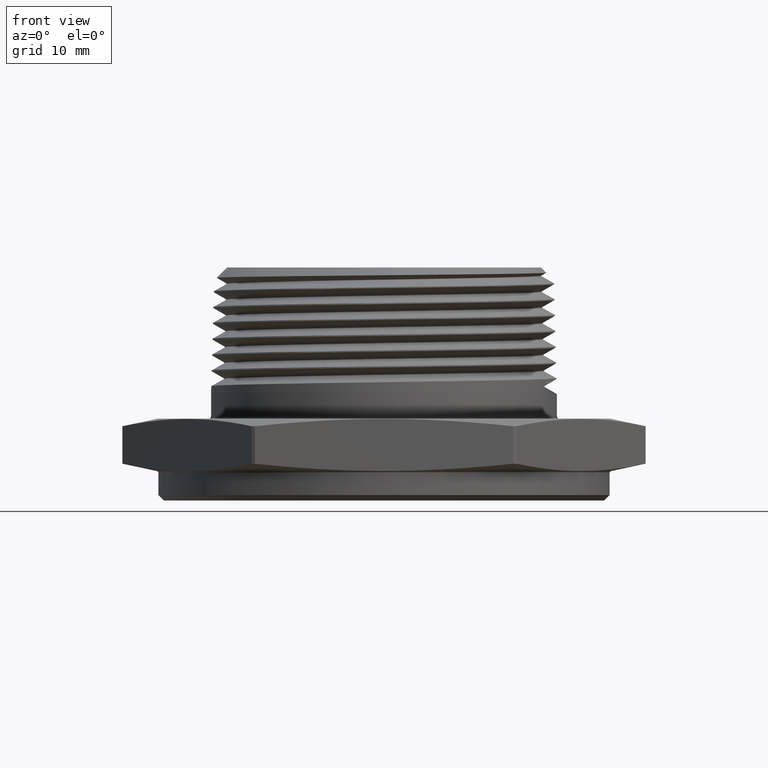
[diagram: clean part render]
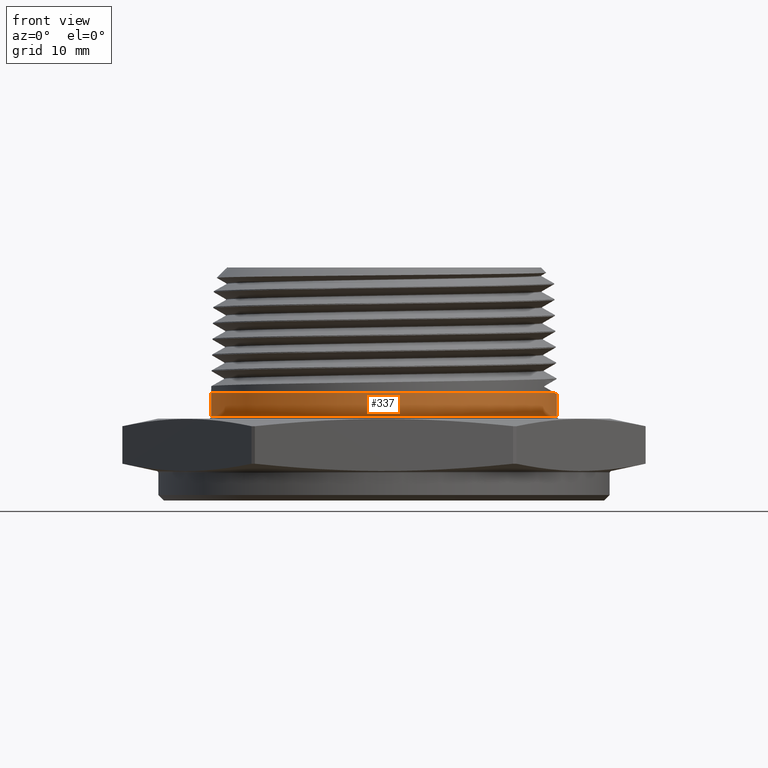
[diagram: same view with one face highlighted and labeled with its STEP entity id]
A machine part, front view. The second image highlights one B-rep face of the part: STEP entity #337.
In plain terms, the highlighted cylindrical surface (partial cylindrical patch) has radius 24.13 mm, axis along (-0, -0, -1).
Its self-contained STEP definition (entity closure, byte-faithful):
#106 = EDGE_CURVE ( 'NONE', #682, #694, #5133, .T. ) ;
#152 = EDGE_CURVE ( 'NONE', #627, #664, #383, .T. ) ;
#161 = EDGE_CURVE ( 'NONE', #627, #682, #391, .T. ) ;
#163 = EDGE_CURVE ( 'NONE', #613, #694, #386, .T. ) ;
#196 = EDGE_CURVE ( 'NONE', #613, #664, #7400, .T. ) ;
#244 = AXIS2_PLACEMENT_3D ( 'NONE', #7510, #7509, #7508 ) ;
#258 = AXIS2_PLACEMENT_3D ( 'NONE', #4448, #4449, #4450 ) ;
#302 = AXIS2_PLACEMENT_3D ( 'NONE', #5231, #5232, #5230 ) ;
#337 = ADVANCED_FACE ( 'NONE', ( #500 ), #471, .T. ) ;
#383 = CIRCLE ( 'NONE', #258, 0.9499999999999999600 ) ;
#386 = LINE ( 'NONE', #4588, #396 ) ;
#391 = LINE ( 'NONE', #4584, #394 ) ;
#394 = VECTOR ( 'NONE', #4585, 39.37007874015748100 ) ;
#396 = VECTOR ( 'NONE', #4576, 39.37007874015748100 ) ;
#471 = CYLINDRICAL_SURFACE ( 'NONE', #302, 0.9499999999999999600 ) ;
#500 = FACE_OUTER_BOUND ( 'NONE', #5023, .T. ) ;
#613 = VERTEX_POINT ( 'NONE', #3505 ) ;
#627 = VERTEX_POINT ( 'NONE', #3515 ) ;
#664 = VERTEX_POINT ( 'NONE', #3552 ) ;
#682 = VERTEX_POINT ( 'NONE', #3570 ) ;
#694 = VERTEX_POINT ( 'NONE', #3582 ) ;
#3505 = CARTESIAN_POINT ( 'NONE',  ( 0.9499999999999999600, 1.396097351027982000E-015, 0.4247256000610708000 ) ) ;
#3515 = CARTESIAN_POINT ( 'NONE',  ( -0.9499999999999999600, 0.0000000000000000000, 0.4322118300599065400 ) ) ;
#3552 = CARTESIAN_POINT ( 'NONE',  ( 0.9370334692848701900, -0.1564233916010012200, 0.4322118300599065400 ) ) ;
#3570 = CARTESIAN_POINT ( 'NONE',  ( -0.9499999999999999600, 0.0000000000000000000, 0.2999999999999999300 ) ) ;
#3582 = CARTESIAN_POINT ( 'NONE',  ( 0.9499999999999999600, 1.163414459189985400E-016, 0.2999999999999999300 ) ) ;
#3635 = CARTESIAN_POINT ( 'NONE',  ( 0.9499999999999999600, 1.396097351027982000E-015, 0.4247256000610708000 ) ) ;
#3636 = CARTESIAN_POINT ( 'NONE',  ( 0.9500000000000004000, -0.05243945977896558700, 0.4247256000610707400 ) ) ;
#3641 = CARTESIAN_POINT ( 'NONE',  ( 0.9456679515505023200, -0.1046996769440434600, 0.4272267093995309500 ) ) ;
#3642 = CARTESIAN_POINT ( 'NONE',  ( 0.9370334692848701900, -0.1564233916010012200, 0.4322118300599065400 ) ) ;
#4448 = CARTESIAN_POINT ( 'NONE',  ( 0.0000000000000000000, 0.0000000000000000000, 0.4322118300599065400 ) ) ;
#4449 = DIRECTION ( 'NONE',  ( 0.0000000000000000000, 0.0000000000000000000, 1.000000000000000000 ) ) ;
#4450 = DIRECTION ( 'NONE',  ( -1.000000000000000000, 0.0000000000000000000, 0.0000000000000000000 ) ) ;
#4576 = DIRECTION ( 'NONE',  ( -0.0000000000000000000, -0.0000000000000000000, -1.000000000000000000 ) ) ;
#4584 = CARTESIAN_POINT ( 'NONE',  ( -0.9499999999999999600, 0.0000000000000000000, 1.120000000000000100 ) ) ;
#4585 = DIRECTION ( 'NONE',  ( -0.0000000000000000000, -0.0000000000000000000, -1.000000000000000000 ) ) ;
#4588 = CARTESIAN_POINT ( 'NONE',  ( 0.9499999999999999600, 1.163414459189985400E-016, 1.120000000000000100 ) ) ;
#4889 = ORIENTED_EDGE ( 'NONE', *, *, #163, .F. ) ;
#4890 = ORIENTED_EDGE ( 'NONE', *, *, #196, .T. ) ;
#4891 = ORIENTED_EDGE ( 'NONE', *, *, #152, .F. ) ;
#5023 = EDGE_LOOP ( 'NONE', ( #4889, #4890, #4891, #7135, #7134 ) ) ;
#5133 = CIRCLE ( 'NONE', #244, 0.9499999999999999600 ) ;
#5230 = DIRECTION ( 'NONE',  ( -1.000000000000000000, 0.0000000000000000000, 0.0000000000000000000 ) ) ;
#5231 = CARTESIAN_POINT ( 'NONE',  ( 0.0000000000000000000, 0.0000000000000000000, 1.120000000000000100 ) ) ;
#5232 = DIRECTION ( 'NONE',  ( -0.0000000000000000000, -0.0000000000000000000, -1.000000000000000000 ) ) ;
#7134 = ORIENTED_EDGE ( 'NONE', *, *, #106, .T. ) ;
#7135 = ORIENTED_EDGE ( 'NONE', *, *, #161, .T. ) ;
#7400 =( BOUNDED_CURVE ( )  B_SPLINE_CURVE ( 3, ( #3635, #3636, #3641, #3642 ),
 .UNSPECIFIED., .F., .F. ) 
 B_SPLINE_CURVE_WITH_KNOTS ( ( 4, 4 ),
 ( 0.0000000000000000000, 0.1654094454163050300 ),
 .UNSPECIFIED. ) 
 CURVE ( )  GEOMETRIC_REPRESENTATION_ITEM ( )  RATIONAL_B_SPLINE_CURVE ( ( 1.000000000000000000, 0.9977212756113476000, 0.9977212756113476000, 1.000000000000000000 ) ) 
 REPRESENTATION_ITEM ( '' )  );
#7508 = DIRECTION ( 'NONE',  ( 1.000000000000000000, 0.0000000000000000000, 0.0000000000000000000 ) ) ;
#7509 = DIRECTION ( 'NONE',  ( -0.0000000000000000000, 0.0000000000000000000, 1.000000000000000000 ) ) ;
#7510 = CARTESIAN_POINT ( 'NONE',  ( 0.0000000000000000000, 0.0000000000000000000, 0.2999999999999999300 ) ) ;